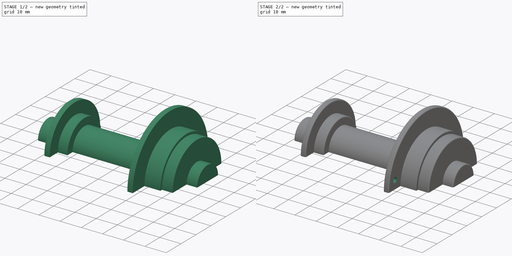
[diagram: build sequence overview — one tinted view per stage of 2, left to right]
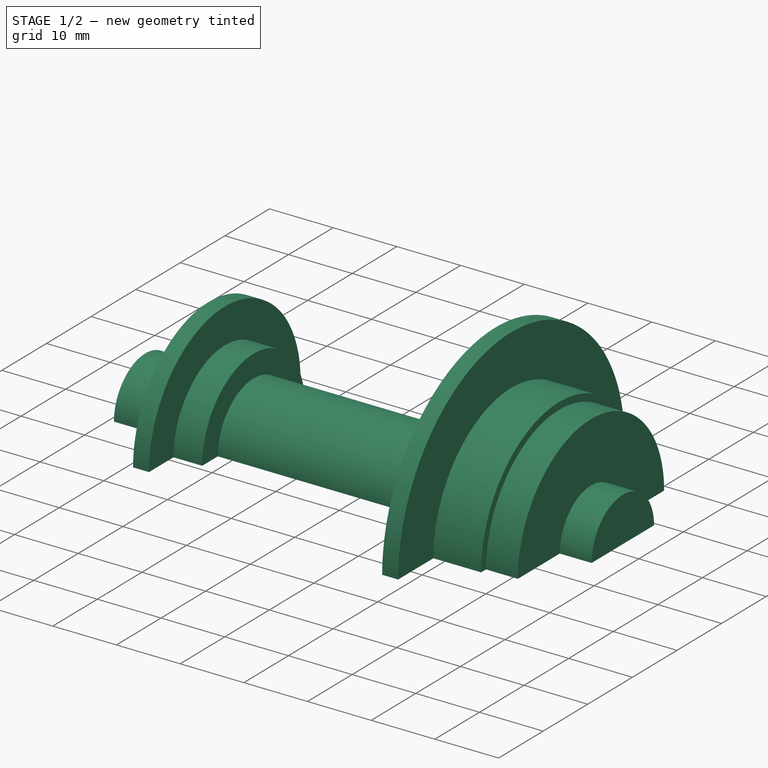
[diagram: stage 1 of 2 — iso view after this stage's code; geometry added in this stage tinted green]
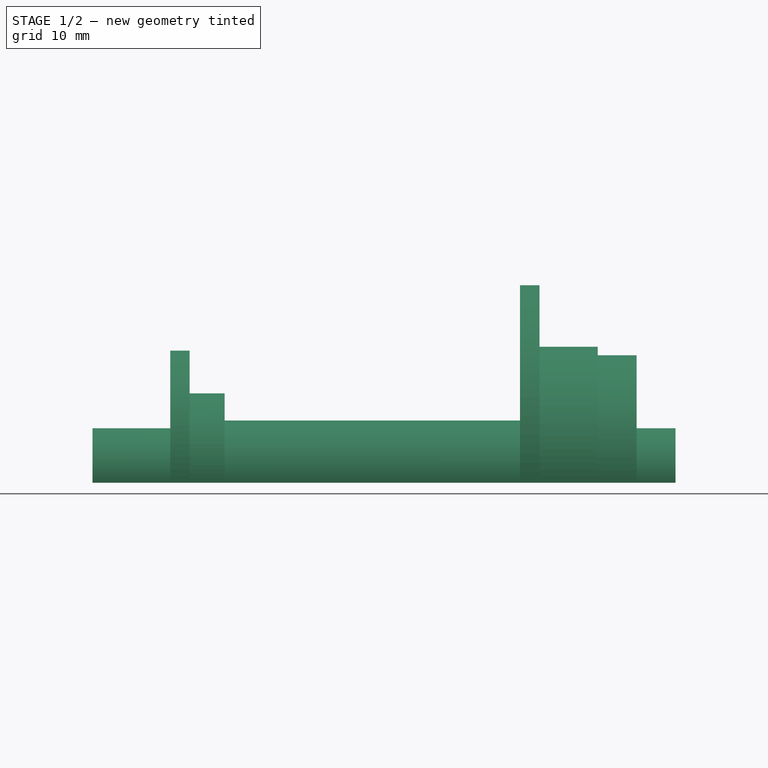
[diagram: stage 1 of 2 — front view after this stage's code; geometry added in this stage tinted green]
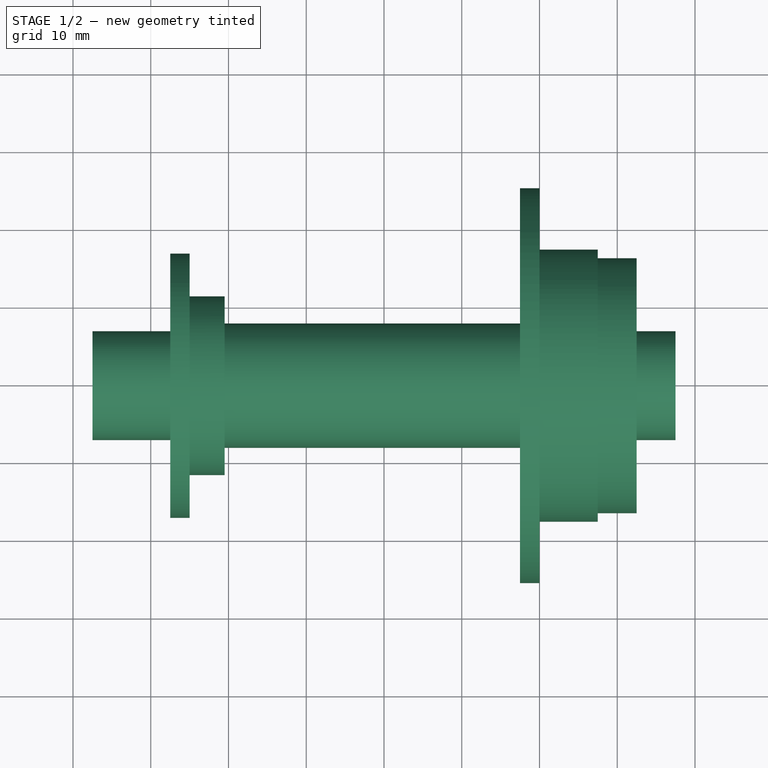
[diagram: stage 1 of 2 — top view after this stage's code; geometry added in this stage tinted green]
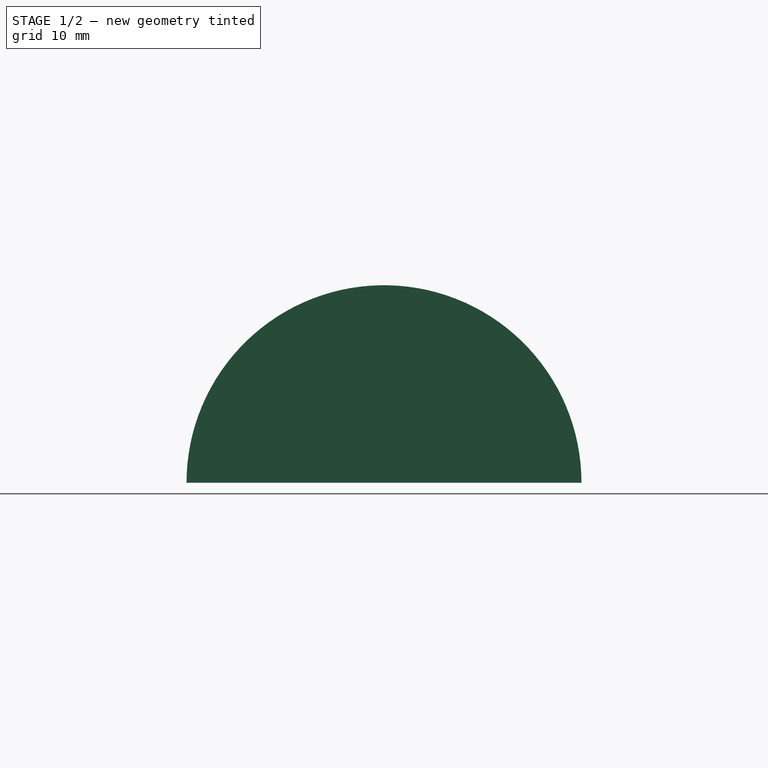
[diagram: stage 1 of 2 — right view after this stage's code; geometry added in this stage tinted green]
FCSTD DOCUMENT  (FreeCAD 0.16R)
Label: 75mmFixielitedraft
License: All rights reserved
LicenseURL: http://en.wikipedia.org/wiki/All_rights_reserved
objects: Sketcher::SketchObject×3, PartDesign::Pocket×2, PartDesign::Revolution×1, PartDesign::Fillet×1
note: 10 computed .brp shape members not serialized (recipe doc carries the construction recipe); baked Part::Feature solids carry a one-line shape summary decoded from their .brp

FEATURE [Sketcher::SketchObject] Sketch
  sketch-geometry (20):
    g0: LineSegment [constr] StartX=37.5 StartY=0 StartZ=0 EndX=37.5 EndY=-10 EndZ=0
    g1: LineSegment [constr] StartX=-37.5 StartY=0 StartZ=0 EndX=-37.5 EndY=-10 EndZ=0
    g2: LineSegment StartX=-37.5 StartY=0 StartZ=0 EndX=-37.5 EndY=7 EndZ=0
    g3: LineSegment StartX=-37.5 StartY=7 StartZ=0 EndX=-27.5 EndY=7 EndZ=0
    g4: LineSegment StartX=-27.5 StartY=7 StartZ=0 EndX=-27.5 EndY=17 EndZ=0
    g5: LineSegment StartX=-27.5 StartY=17 StartZ=0 EndX=-25 EndY=17 EndZ=0
    g6: LineSegment StartX=-20.5 StartY=8 StartZ=0 EndX=17.5 EndY=8 EndZ=0
    g7: LineSegment StartX=17.5 StartY=8 StartZ=0 EndX=17.5 EndY=25.4 EndZ=0
    g8: LineSegment StartX=17.5 StartY=25.4 StartZ=0 EndX=20 EndY=25.4 EndZ=0
    g9: LineSegment StartX=20 StartY=25.4 StartZ=0 EndX=20 EndY=17.5 EndZ=0
    g10: LineSegment StartX=20 StartY=17.5 StartZ=0 EndX=27.5 EndY=17.5 EndZ=0
    g11: LineSegment StartX=27.5 StartY=17.5 StartZ=0 EndX=27.5 EndY=16.4 EndZ=0
    g12: LineSegment StartX=27.5 StartY=16.4 StartZ=0 EndX=32.5 EndY=16.4 EndZ=0
    g13: LineSegment StartX=32.5 StartY=16.4 StartZ=0 EndX=32.5 EndY=7 EndZ=0
    g14: LineSegment StartX=32.5 StartY=7 StartZ=0 EndX=37.5 EndY=7 EndZ=0
    g15: LineSegment StartX=37.5 StartY=7 StartZ=0 EndX=37.5 EndY=0 EndZ=0
    g16: LineSegment StartX=37.5 StartY=0 StartZ=0 EndX=-37.5 EndY=0 EndZ=0
    g17: LineSegment StartX=-20.5 StartY=8 StartZ=0 EndX=-20.5 EndY=11.5 EndZ=0
    g18: LineSegment StartX=-20.5 StartY=11.5 StartZ=0 EndX=-25 EndY=11.5 EndZ=0
    g19: LineSegment StartX=-25 StartY=17 StartZ=0 EndX=-25 EndY=11.5 EndZ=0
  constraints (60):
    c: Vertical(g0)
    c: Vertical(g1)
    c: Distance(g0,g1) = 75
    c: PointOnObject(g1,g-1)
    c: PointOnObject(g0,g-1)
    c: Symmetric(g0,g1,g-1)
    c: Coincident(g2,g1)
    c: Coincident(g2,g3)
    c: Coincident(g3,g4)
    c: Vertical(g4)
    c: Coincident(g4,g5)
    c: Horizontal(g6)
    c: Coincident(g6,g7)
    c: Vertical(g7)
    c: Coincident(g7,g8)
    c: Coincident(g8,g9)
    c: Vertical(g9)
    c: Coincident(g9,g10)
    c: Horizontal(g10)
    c: Coincident(g10,g11)
    c: Coincident(g11,g12)
    c: Coincident(g12,g13)
    c: Vertical(g13)
    c: Coincident(g13,g14)
    c: Coincident(g14,g15)
    c: Coincident(g15,g0)
    c: Coincident(g15,g16)
    c: Coincident(g16,g1)
    c: Vertical(g2)
    c: Horizontal(g3)
    c: Distance(g2) = 7
    c: Horizontal(g5)
    c: Distance(g5) = 2.5
    c: DistanceY(g6) = 8
    c: Horizontal(g8)
    c: Distance(g8) = 2.5
    c: DistanceY(g10) = 17.5
    c: Distance(g10) = 7.5
    c: Vertical(g11)
    c: Horizontal(g12)
    c: DistanceY(g11) = 16.4
    c: Distance(g12) = 5
    c: Horizontal(g14)
    c: Distance(g14) = 5
    c: Vertical(g15)
    c: Distance(g1) = 10
    c: Distance(g0) = 10
    c: DistanceY(g7) = 25.4
    c: Distance(g15) = 7
    c: Distance(g3,g2) = 10
    c: DistanceY(g4) = 17
    c: Coincident(g17,g6)
    c: Vertical(g17)
    c: Coincident(g18,g17)
    c: Horizontal(g18)
    c: Coincident(g19,g5)
    c: Vertical(g19)
    c: Coincident(g18,g19)
    c: DistanceY(g17) = 11.5
    c: Distance(g17,g4) = 7
FEATURE [PartDesign::Revolution] Revolution
  Angle = 180
  Axis = (1,0,0)
  Base = (0,0,0)
  ReferenceAxis = -> Sketch [H_Axis]
  Sketch = -> Sketch
FEATURE [Sketcher::SketchObject] Sketch002
  Placement = pos=(-27.5,0,0) rot=(0.57735,-0.57735,-0.57735;2.0944rad)
  Support = -> Revolution [Face13]
  sketch-geometry (1):
    g0: Circle CenterX=-12.4337 CenterY=2.58726 CenterZ=0 NormalX=0 NormalY=0 NormalZ=1 Radius=1.2
  constraints (2):
    c: Radius(g0) = 1.2
    c: Distance(g-1,g0) = 12.7
FEATURE [PartDesign::Pocket] Pocket
  Length = 5
  Sketch = -> Sketch002
  Type = 0
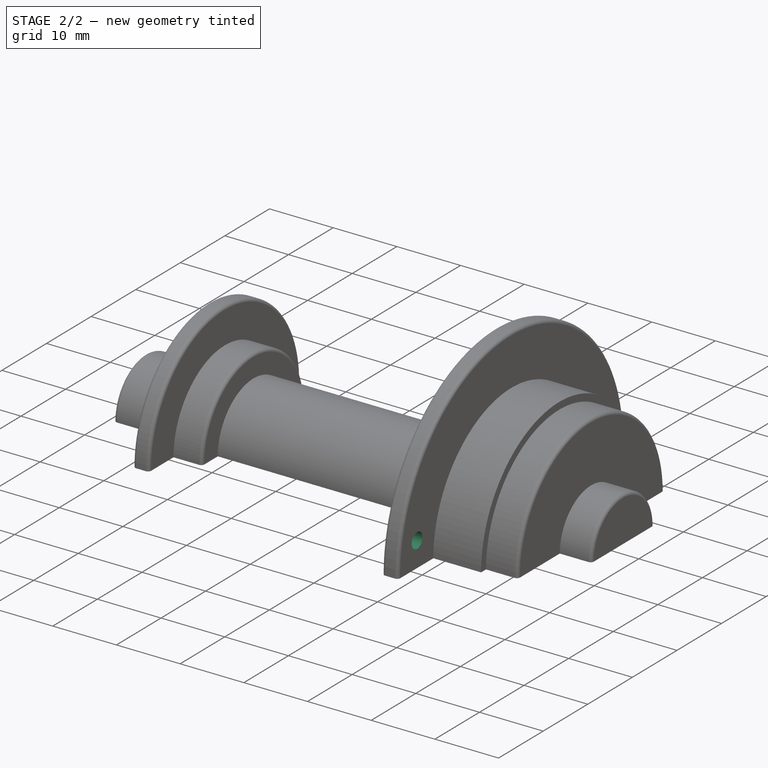
[diagram: stage 2 of 2 — iso view after this stage's code; geometry added in this stage tinted green]
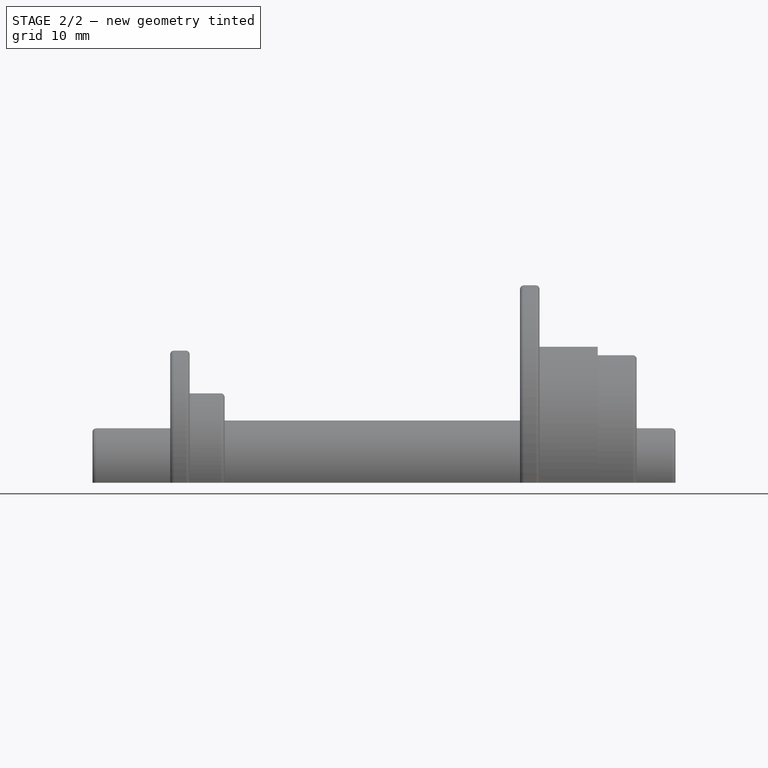
[diagram: stage 2 of 2 — front view after this stage's code; geometry added in this stage tinted green]
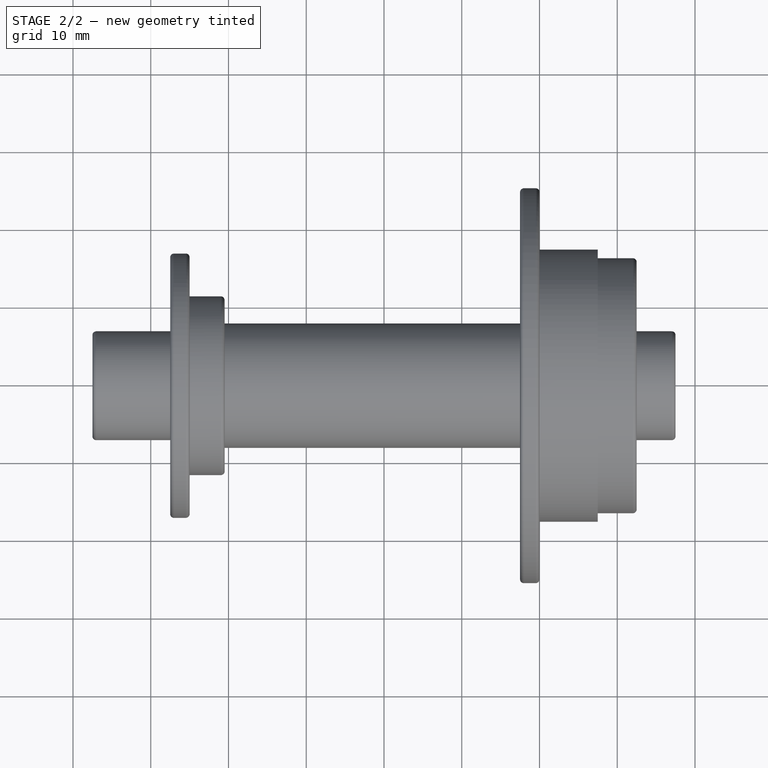
[diagram: stage 2 of 2 — top view after this stage's code; geometry added in this stage tinted green]
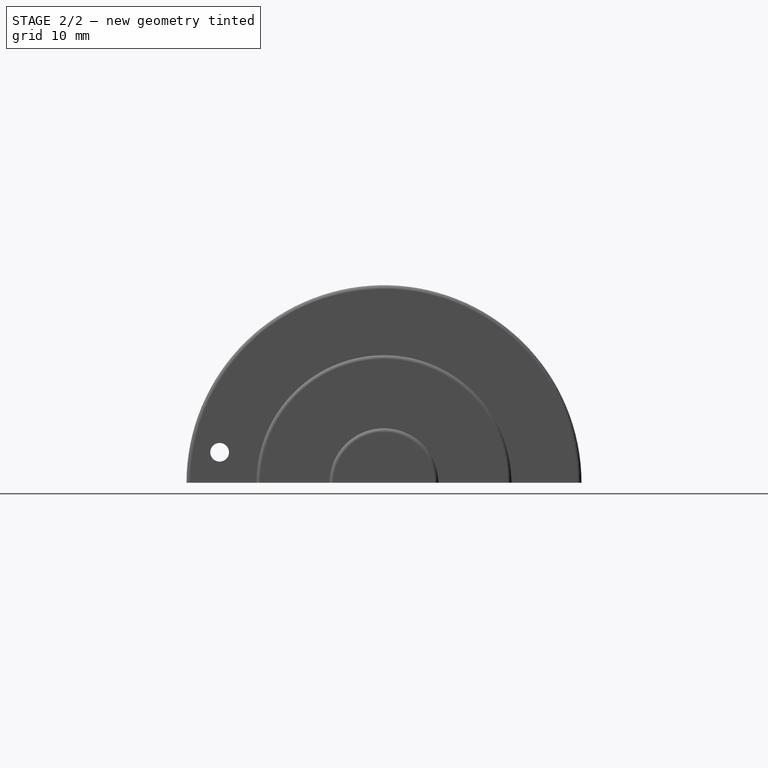
[diagram: stage 2 of 2 — right view after this stage's code; geometry added in this stage tinted green]
FEATURE [Sketcher::SketchObject] Sketch003
  Placement = pos=(20,0,0) rot=(0.57735,0.57735,0.57735;2.0944rad)
  Support = -> Pocket [Face8]
  sketch-geometry (1):
    g0: Circle CenterX=-21.1411 CenterY=3.91214 CenterZ=0 NormalX=0 NormalY=0 NormalZ=1 Radius=1.2
  constraints (2):
    c: Radius(g0) = 1.2
    c: Distance(g-1,g0) = 21.5
FEATURE [PartDesign::Pocket] Pocket001
  Length = 5
  Sketch = -> Sketch003
  Type = 0
FEATURE [PartDesign::Fillet] Fillet
  Base = -> Pocket001 [Edge55,Edge57,Edge5,Edge10,Edge44,Edge50,Edge52,Edge53]
  Radius = 0.5
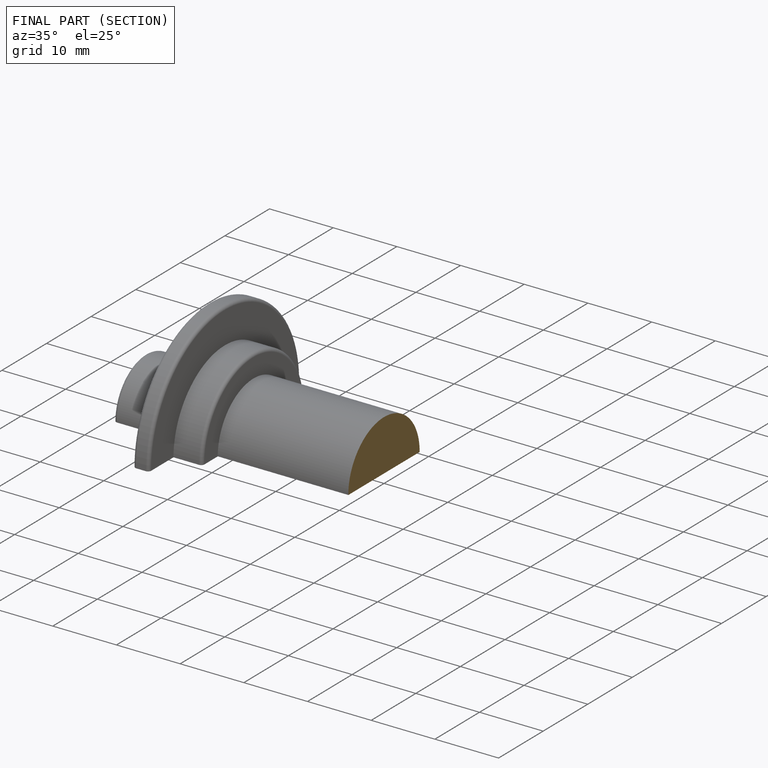
[diagram: finished part — half-section view (interior)]
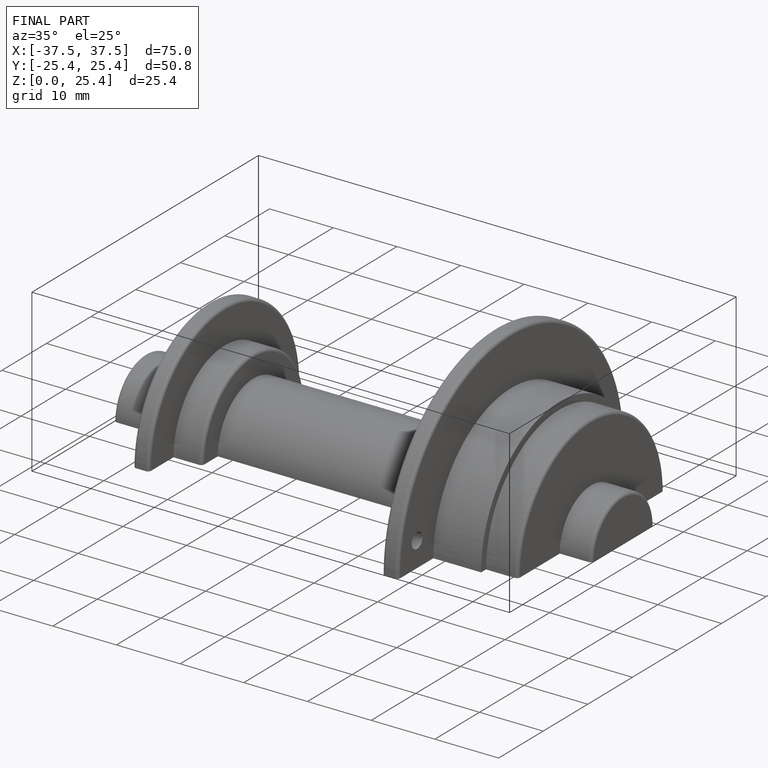
[diagram: finished part — iso view with bounding-box wireframe]
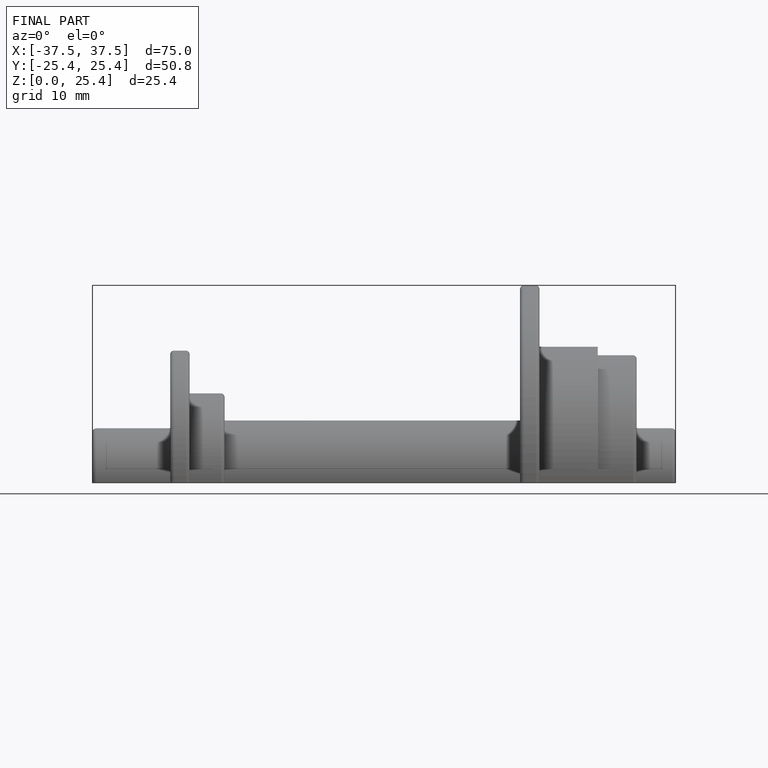
[diagram: finished part — front view with bounding-box wireframe]
